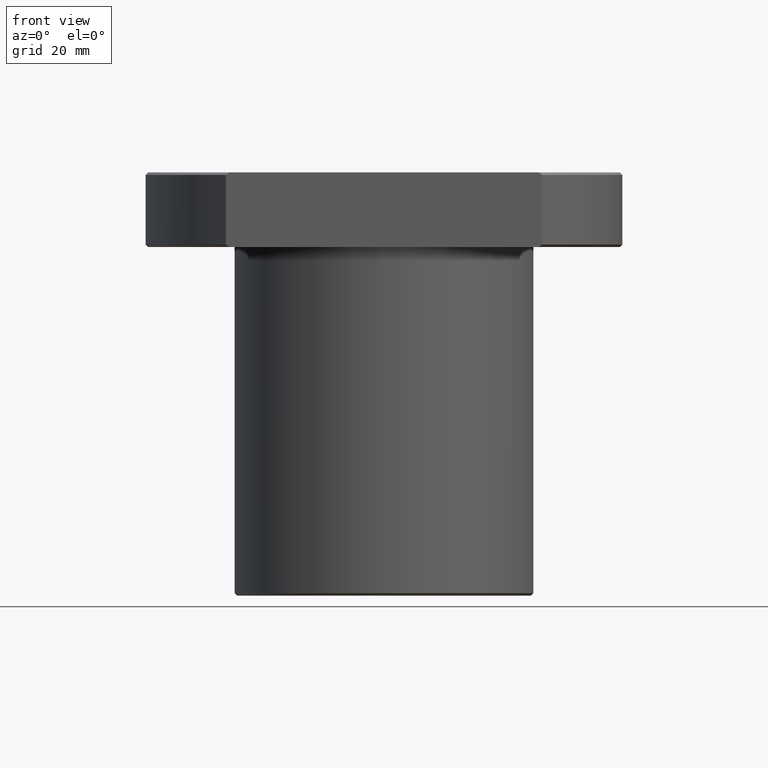
[diagram: clean part render]
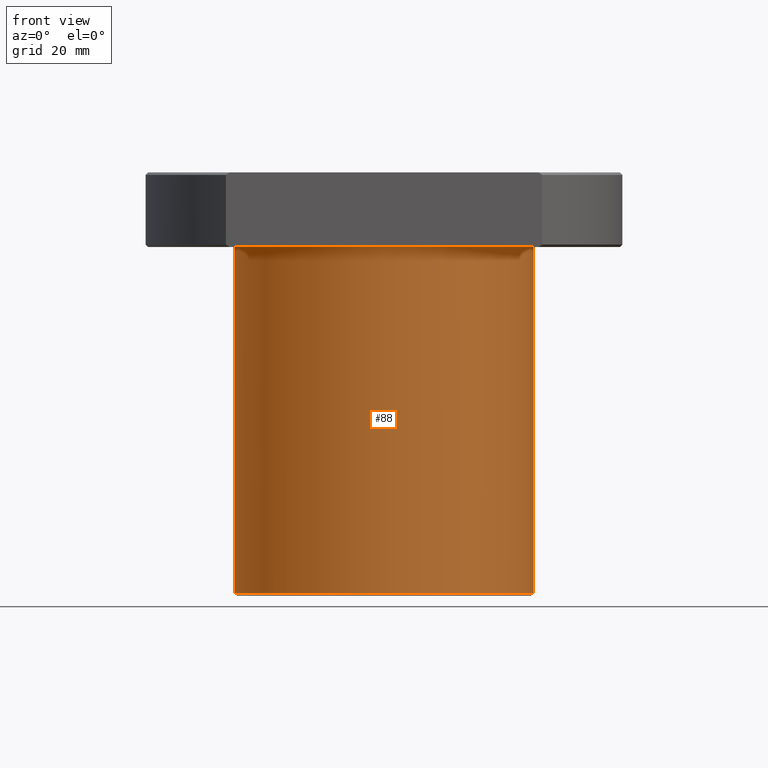
[diagram: same view with one face highlighted and labeled with its STEP entity id]
A machine part, front view. The second image highlights one B-rep face of the part: STEP entity #88.
In plain terms, the highlighted cylindrical surface (partial cylindrical patch) has radius 30 mm, axis along (0, 0, 1).
Its self-contained STEP definition (entity closure, byte-faithful):
#35=AXIS2_PLACEMENT_3D('Cylinder Axis2P3D',#32,#33,#34) ;
#74=AXIS2_PLACEMENT_3D('Circle Axis2P3D',#72,#73,$) ;
#79=AXIS2_PLACEMENT_3D('Circle Axis2P3D',#77,#78,$) ;
#32=CARTESIAN_POINT('Axis2P3D Location',(0.,0.,35.)) ;
#37=CARTESIAN_POINT('Line Origine',(-30.,1.6996495357E-014,35.)) ;
#41=CARTESIAN_POINT('Vertex',(-30.,1.6996495357E-014,0.5)) ;
#43=CARTESIAN_POINT('Vertex',(-30.,1.6996495357E-014,70.)) ;
#50=CARTESIAN_POINT('Vertex',(30.,0.,70.)) ;
#53=CARTESIAN_POINT('Line Origine',(30.,0.,35.)) ;
#57=CARTESIAN_POINT('Vertex',(30.,-3.39929907139E-014,0.5)) ;
#72=CARTESIAN_POINT('Axis2P3D Location',(0.,0.,70.)) ;
#77=CARTESIAN_POINT('Axis2P3D Location',(0.,0.,0.5)) ;
#33=DIRECTION('Axis2P3D Direction',(0.,0.,1.)) ;
#34=DIRECTION('Axis2P3D XDirection',(1.,0.,0.)) ;
#38=DIRECTION('Vector Direction',(0.,0.,1.)) ;
#54=DIRECTION('Vector Direction',(0.,0.,1.)) ;
#73=DIRECTION('Axis2P3D Direction',(0.,0.,1.)) ;
#78=DIRECTION('Axis2P3D Direction',(0.,0.,1.)) ;
#39=VECTOR('Line Direction',#38,1.) ;
#55=VECTOR('Line Direction',#54,1.) ;
#83=ORIENTED_EDGE('',*,*,#59,.T.) ;
#84=ORIENTED_EDGE('',*,*,#76,.F.) ;
#85=ORIENTED_EDGE('',*,*,#45,.F.) ;
#86=ORIENTED_EDGE('',*,*,#81,.T.) ;
#88=ADVANCED_FACE('',(#87),#36,.T.) ;
#75=CIRCLE('generated circle',#74,30.) ;
#80=CIRCLE('generated circle',#79,30.) ;
#36=CYLINDRICAL_SURFACE('generated cylinder',#35,30.) ;
#45=EDGE_CURVE('',#42,#44,#40,.T.) ;
#59=EDGE_CURVE('',#58,#51,#56,.T.) ;
#76=EDGE_CURVE('',#44,#51,#75,.T.) ;
#81=EDGE_CURVE('',#42,#58,#80,.T.) ;
#82=EDGE_LOOP('',(#83,#84,#85,#86)) ;
#87=FACE_OUTER_BOUND('',#82,.T.) ;
#40=LINE('Line',#37,#39) ;
#56=LINE('Line',#53,#55) ;
#42=VERTEX_POINT('',#41) ;
#44=VERTEX_POINT('',#43) ;
#51=VERTEX_POINT('',#50) ;
#58=VERTEX_POINT('',#57) ;